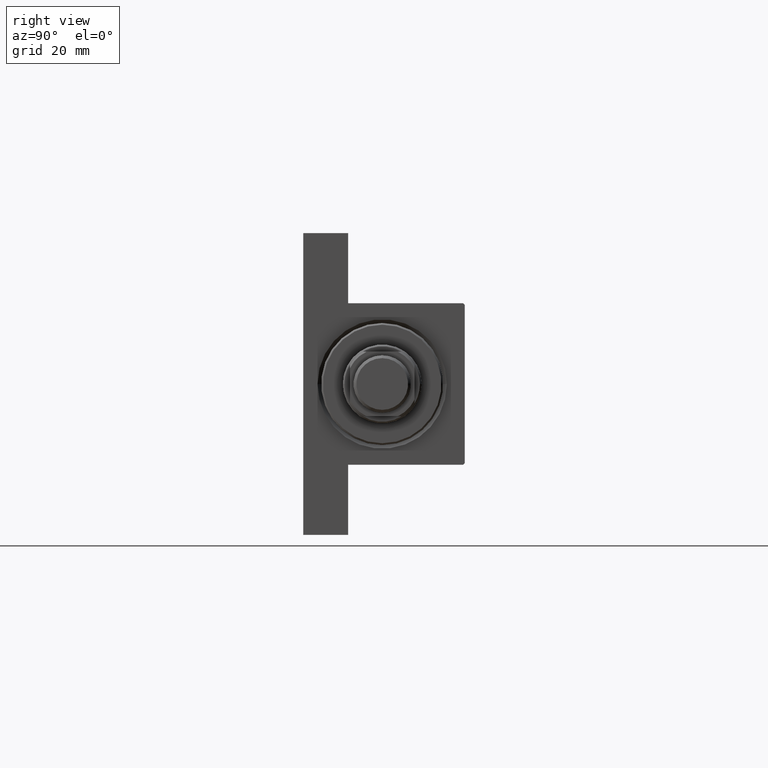
[diagram: clean part render]
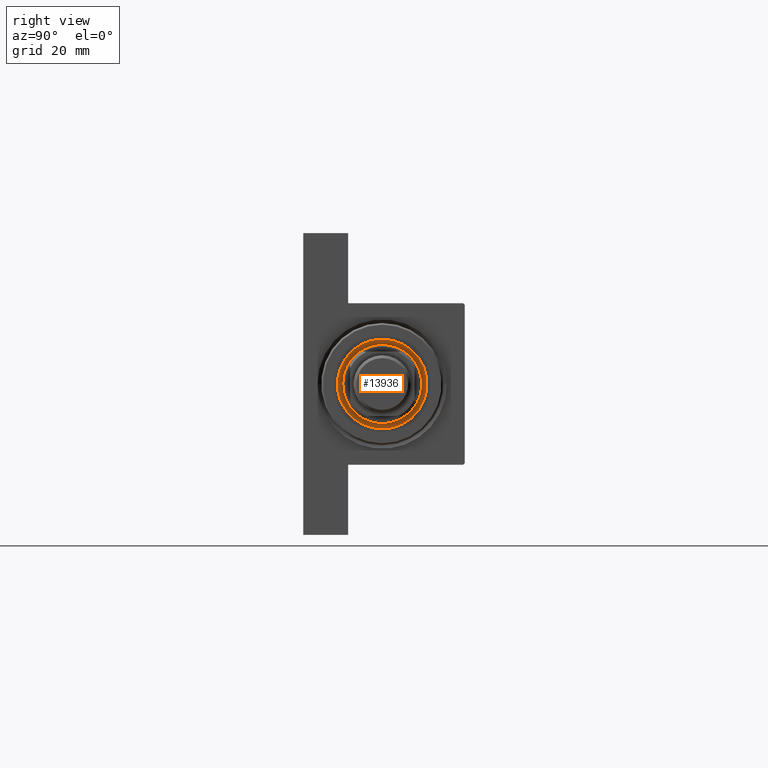
[diagram: same view with one face highlighted and labeled with its STEP entity id]
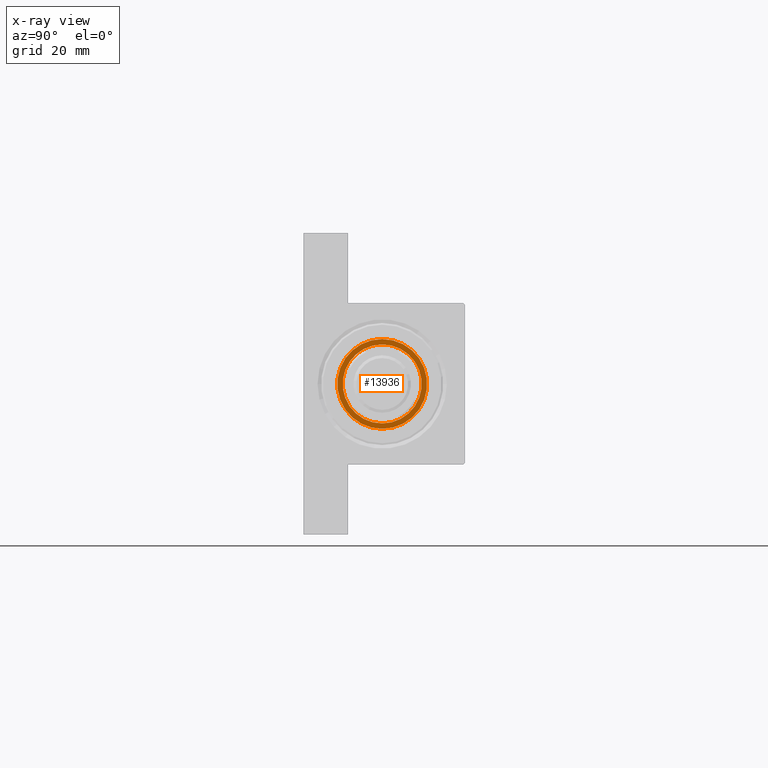
[diagram: x-ray of the same camera — body ghosted, the highlighted face saturated]
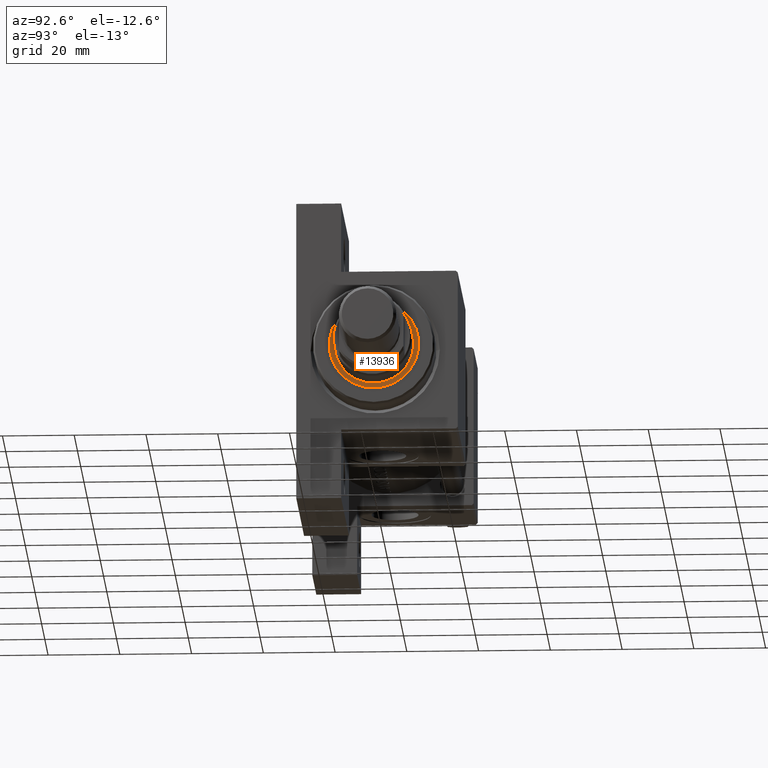
[diagram: same view with one face highlighted and labeled with its STEP entity id]
A machine part, right view. The second image highlights one B-rep face of the part: STEP entity #13936.
The next image is the same camera in x-ray: the body ghosted, the highlighted face saturated — about 0% of this face is hidden behind the body in this view.
A second angle (auxiliary view) of the same face is appended — the face is thin or edge-on in the first view.
In plain terms, the highlighted planar face has unit normal (1, 0, 0).
Its self-contained STEP definition (entity closure, byte-faithful):
#844 = CARTESIAN_POINT ( 'NONE',  ( -12.50000000000000000, 1.530808498934191521E-15, 40.20000000000000284 ) ) ;
#2742 = DIRECTION ( 'NONE',  ( 0.000000000000000000, 0.000000000000000000, 1.000000000000000000 ) ) ;
#4128 = CIRCLE ( 'NONE', #15734, 12.50000000000000000 ) ;
#8687 = CIRCLE ( 'NONE', #17120, 12.50000000000000000 ) ;
#9156 = VERTEX_POINT ( 'NONE', #20927 ) ;
#9390 = EDGE_CURVE ( 'NONE', #44896, #18915, #8687, .T. ) ;
#10233 = DIRECTION ( 'NONE',  ( 1.000000000000000000, 0.000000000000000000, 0.000000000000000000 ) ) ;
#10736 = PLANE ( 'NONE',  #39922 ) ;
#10804 = EDGE_CURVE ( 'NONE', #18915, #44896, #4128, .T. ) ;
#13936 = ADVANCED_FACE ( 'NONE', ( #25821, #43818 ), #10736, .T. ) ;
#15734 = AXIS2_PLACEMENT_3D ( 'NONE', #17635, #25412, #28355 ) ;
#16343 = CIRCLE ( 'NONE', #41983, 11.00000000000000000 ) ;
#16501 = CARTESIAN_POINT ( 'NONE',  ( 0.000000000000000000, 0.000000000000000000, 40.20000000000000284 ) ) ;
#17120 = AXIS2_PLACEMENT_3D ( 'NONE', #16501, #46154, #46389 ) ;
#17635 = CARTESIAN_POINT ( 'NONE',  ( 0.000000000000000000, 0.000000000000000000, 40.20000000000000284 ) ) ;
#18915 = VERTEX_POINT ( 'NONE', #43545 ) ;
#20460 = CARTESIAN_POINT ( 'NONE',  ( 0.000000000000000000, 0.000000000000000000, 40.20000000000000284 ) ) ;
#20927 = CARTESIAN_POINT ( 'NONE',  ( -11.00000000000000000, 1.347111479062088405E-15, 40.20000000000000284 ) ) ;
#23267 = EDGE_LOOP ( 'NONE', ( #39902, #41095 ) ) ;
#23989 = AXIS2_PLACEMENT_3D ( 'NONE', #24022, #27672, #38839 ) ;
#24022 = CARTESIAN_POINT ( 'NONE',  ( 0.000000000000000000, 0.000000000000000000, 40.20000000000000284 ) ) ;
#25335 = EDGE_LOOP ( 'NONE', ( #32850, #41579 ) ) ;
#25412 = DIRECTION ( 'NONE',  ( 0.000000000000000000, 0.000000000000000000, 1.000000000000000000 ) ) ;
#25821 = FACE_OUTER_BOUND ( 'NONE', #25335, .T. ) ;
#27672 = DIRECTION ( 'NONE',  ( -0.000000000000000000, -0.000000000000000000, -1.000000000000000000 ) ) ;
#28355 = DIRECTION ( 'NONE',  ( 1.000000000000000000, 0.000000000000000000, 0.000000000000000000 ) ) ;
#29662 = EDGE_CURVE ( 'NONE', #40801, #9156, #44947, .T. ) ;
#32850 = ORIENTED_EDGE ( 'NONE', *, *, #10804, .T. ) ;
#36034 = CARTESIAN_POINT ( 'NONE',  ( 0.000000000000000000, 0.000000000000000000, 40.20000000000000284 ) ) ;
#37186 = EDGE_CURVE ( 'NONE', #9156, #40801, #16343, .T. ) ;
#38839 = DIRECTION ( 'NONE',  ( 1.000000000000000000, 0.000000000000000000, 0.000000000000000000 ) ) ;
#39395 = DIRECTION ( 'NONE',  ( -0.000000000000000000, -0.000000000000000000, -1.000000000000000000 ) ) ;
#39902 = ORIENTED_EDGE ( 'NONE', *, *, #29662, .T. ) ;
#39922 = AXIS2_PLACEMENT_3D ( 'NONE', #36034, #2742, #43581 ) ;
#40801 = VERTEX_POINT ( 'NONE', #41077 ) ;
#41077 = CARTESIAN_POINT ( 'NONE',  ( 11.00000000000000000, 0.000000000000000000, 40.20000000000000284 ) ) ;
#41095 = ORIENTED_EDGE ( 'NONE', *, *, #37186, .T. ) ;
#41579 = ORIENTED_EDGE ( 'NONE', *, *, #9390, .T. ) ;
#41983 = AXIS2_PLACEMENT_3D ( 'NONE', #20460, #39395, #10233 ) ;
#43545 = CARTESIAN_POINT ( 'NONE',  ( 12.50000000000000000, 0.000000000000000000, 40.20000000000000284 ) ) ;
#43581 = DIRECTION ( 'NONE',  ( 1.000000000000000000, 0.000000000000000000, -0.000000000000000000 ) ) ;
#43818 = FACE_BOUND ( 'NONE', #23267, .T. ) ;
#44896 = VERTEX_POINT ( 'NONE', #844 ) ;
#44947 = CIRCLE ( 'NONE', #23989, 11.00000000000000000 ) ;
#46154 = DIRECTION ( 'NONE',  ( 0.000000000000000000, 0.000000000000000000, 1.000000000000000000 ) ) ;
#46389 = DIRECTION ( 'NONE',  ( 1.000000000000000000, 0.000000000000000000, 0.000000000000000000 ) ) ;